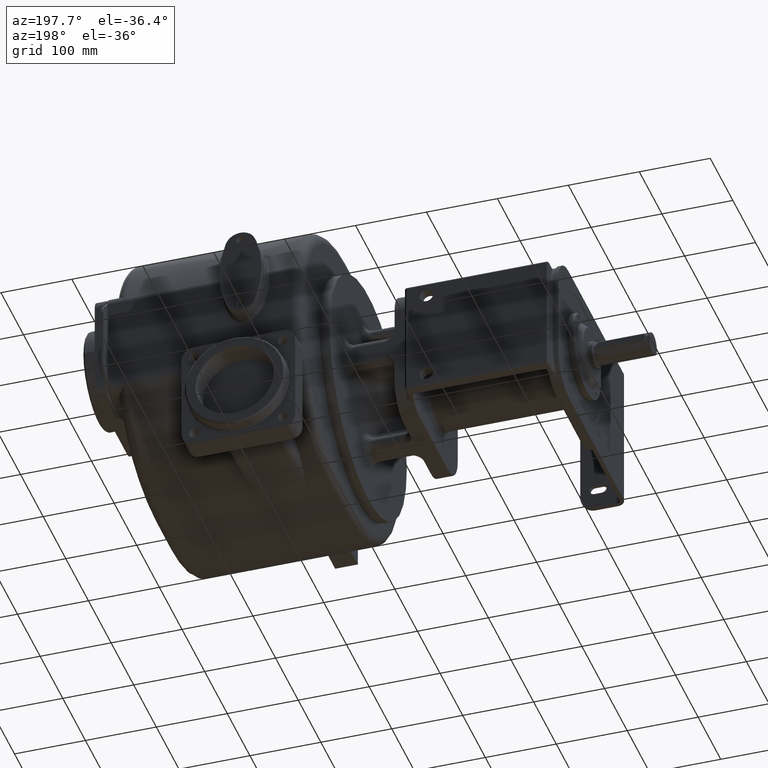
[diagram: clean part render]
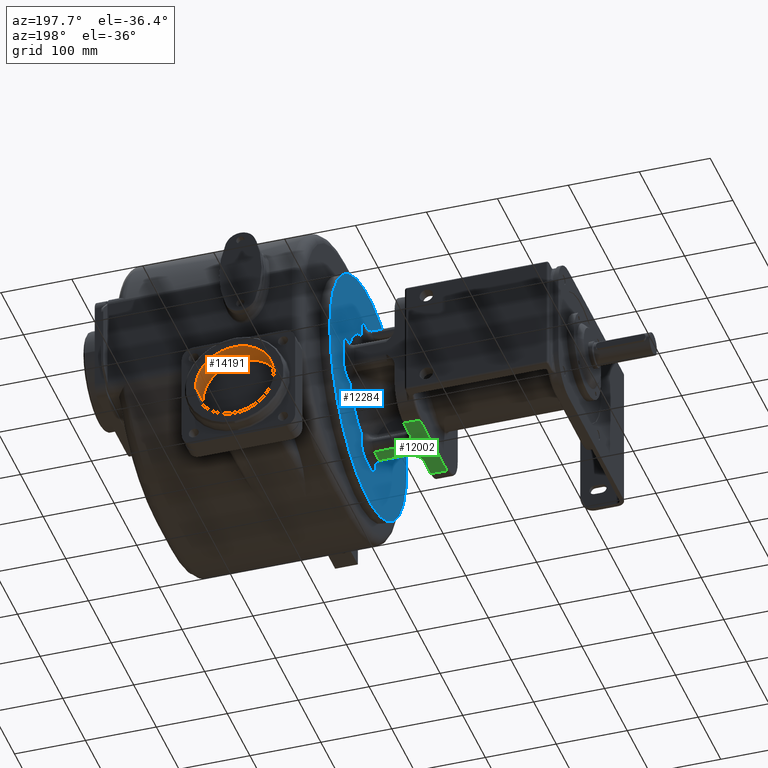
[diagram: same view with three faces highlighted in distinct colors, each labeled with its STEP entity id]
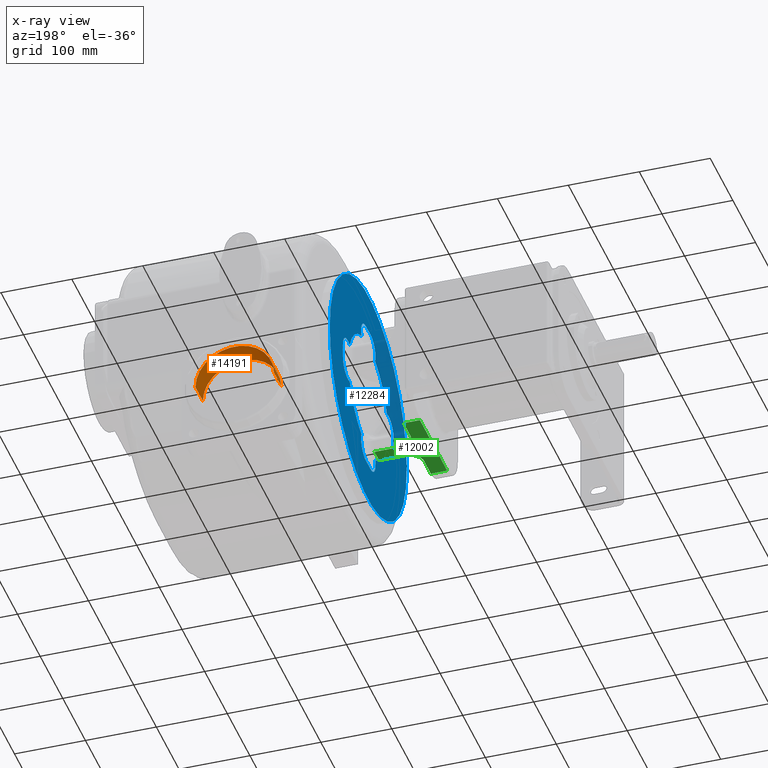
[diagram: x-ray of the same camera — body ghosted, the three highlighted faces saturated]
A machine part, auxiliary view with three faces highlighted in distinct colors.
The next image is the same camera in x-ray (body ghosted, the three faces saturated) — at least one of them is partly hidden behind the body in this view.
Their STEP definitions:

[orange] entity #14191 — the highlighted cylindrical surface (partial cylindrical patch) has radius 55.25 mm, axis along (0, 1, 0).
#2685=CARTESIAN_POINT('',(0.E0,4.945E2,-1.555E2));
#2686=DIRECTION('',(0.E0,1.E0,0.E0));
#2687=DIRECTION('',(-1.E0,0.E0,0.E0));
#2688=AXIS2_PLACEMENT_3D('',#2685,#2686,#2687);
#2707=DIRECTION('',(0.E0,1.E0,0.E0));
#2708=VECTOR('',#2707,3.3E1);
#2709=CARTESIAN_POINT('',(-5.525E1,4.615E2,-1.555E2));
#2710=LINE('',#2709,#2708);
#2711=DIRECTION('',(0.E0,1.E0,0.E0));
#2712=VECTOR('',#2711,3.3E1);
#2713=CARTESIAN_POINT('',(5.525E1,4.615E2,-1.555E2));
#2714=LINE('',#2713,#2712);
#2720=CARTESIAN_POINT('',(0.E0,4.615E2,-1.555E2));
#2721=DIRECTION('',(0.E0,1.E0,0.E0));
#2722=DIRECTION('',(-1.E0,0.E0,0.E0));
#2723=AXIS2_PLACEMENT_3D('',#2720,#2721,#2722);
#10107=CARTESIAN_POINT('',(5.525E1,4.945E2,-1.555E2));
#10108=CARTESIAN_POINT('',(-5.525E1,4.945E2,-1.555E2));
#10109=VERTEX_POINT('',#10107);
#10110=VERTEX_POINT('',#10108);
#10111=CARTESIAN_POINT('',(5.525E1,4.615E2,-1.555E2));
#10112=CARTESIAN_POINT('',(-5.525E1,4.615E2,-1.555E2));
#10113=VERTEX_POINT('',#10111);
#10114=VERTEX_POINT('',#10112);
#14179=CARTESIAN_POINT('',(0.E0,4.56385E2,-1.555E2));
#14180=DIRECTION('',(0.E0,1.E0,0.E0));
#14181=DIRECTION('',(1.E0,0.E0,0.E0));
#14182=AXIS2_PLACEMENT_3D('',#14179,#14180,#14181);
#14183=CYLINDRICAL_SURFACE('',#14182,5.525E1);
#14184=ORIENTED_EDGE('',*,*,#14134,.F.);
#14185=ORIENTED_EDGE('',*,*,#14174,.F.);
#14187=ORIENTED_EDGE('',*,*,#14186,.T.);
#14188=ORIENTED_EDGE('',*,*,#14170,.T.);
#14189=EDGE_LOOP('',(#14184,#14185,#14187,#14188));
#14190=FACE_OUTER_BOUND('',#14189,.F.);
#14191=ADVANCED_FACE('',(#14190),#14183,.F.);
#2689=CIRCLE('',#2688,5.525E1);
#2724=CIRCLE('',#2723,5.525E1);
#14134=EDGE_CURVE('',#10110,#10109,#2689,.T.);
#14170=EDGE_CURVE('',#10113,#10109,#2714,.T.);
#14174=EDGE_CURVE('',#10114,#10110,#2710,.T.);
#14186=EDGE_CURVE('',#10114,#10113,#2724,.T.);

[blue] entity #12284 — the highlighted planar face has unit normal (-1, 0, 0).
#604=DIRECTION('',(0.E0,0.E0,1.E0));
#605=VECTOR('',#604,2.E1);
#606=CARTESIAN_POINT('',(-9.45E1,8.8E1,-1.E1));
#607=LINE('',#606,#605);
#608=CARTESIAN_POINT('',(-9.45E1,1.1E2,1.E1));
#609=DIRECTION('',(-1.E0,0.E0,0.E0));
#610=DIRECTION('',(0.E0,-1.E0,0.E0));
#611=AXIS2_PLACEMENT_3D('',#608,#609,#610);
#613=CARTESIAN_POINT('',(-9.45E1,2.E2,0.E0));
#614=DIRECTION('',(-1.E0,0.E0,0.E0));
#615=DIRECTION('',(0.E0,-9.372872032920E-1,3.485580275149E-1));
#616=AXIS2_PLACEMENT_3D('',#613,#614,#615);
#618=CARTESIAN_POINT('',(-9.45E1,1.9E2,9.E1));
#619=DIRECTION('',(-1.E0,0.E0,0.E0));
#620=DIRECTION('',(0.E0,-9.317648821629E-1,-3.630622596305E-1));
#621=AXIS2_PLACEMENT_3D('',#618,#619,#620);
#623=DIRECTION('',(0.E0,1.E0,0.E0));
#624=VECTOR('',#623,2.E1);
#625=CARTESIAN_POINT('',(-9.45E1,1.9E2,1.12E2));
#626=LINE('',#625,#624);
#627=CARTESIAN_POINT('',(-9.45E1,2.1E2,9.E1));
#628=DIRECTION('',(-1.E0,0.E0,0.E0));
#629=DIRECTION('',(0.E0,0.E0,1.E0));
#630=AXIS2_PLACEMENT_3D('',#627,#628,#629);
#632=CARTESIAN_POINT('',(-9.45E1,2.E2,0.E0));
#633=DIRECTION('',(-1.E0,0.E0,0.E0));
#634=DIRECTION('',(0.E0,3.485580275149E-1,9.372872032920E-1));
#635=AXIS2_PLACEMENT_3D('',#632,#633,#634);
#637=CARTESIAN_POINT('',(-9.45E1,2.9E2,1.E1));
#638=DIRECTION('',(-1.E0,0.E0,0.E0));
#639=DIRECTION('',(0.E0,-3.630622596304E-1,9.317648821629E-1));
#640=AXIS2_PLACEMENT_3D('',#637,#638,#639);
#642=DIRECTION('',(0.E0,0.E0,-1.E0));
#643=VECTOR('',#642,2.E1);
#644=CARTESIAN_POINT('',(-9.45E1,3.12E2,1.E1));
#645=LINE('',#644,#643);
#646=CARTESIAN_POINT('',(-9.45E1,2.9E2,-1.E1));
#647=DIRECTION('',(-1.E0,0.E0,0.E0));
#648=DIRECTION('',(0.E0,1.E0,0.E0));
#649=AXIS2_PLACEMENT_3D('',#646,#647,#648);
#651=CARTESIAN_POINT('',(-9.45E1,2.E2,0.E0));
#652=DIRECTION('',(1.E0,0.E0,0.E0));
#653=DIRECTION('',(0.E0,3.485580275149E-1,-9.372872032920E-1));
#654=AXIS2_PLACEMENT_3D('',#651,#652,#653);
#656=CARTESIAN_POINT('',(-9.45E1,2.1E2,-9.E1));
#657=DIRECTION('',(-1.E0,0.E0,0.E0));
#658=DIRECTION('',(0.E0,9.317648821629E-1,3.630622596305E-1));
#659=AXIS2_PLACEMENT_3D('',#656,#657,#658);
#661=DIRECTION('',(0.E0,-1.E0,0.E0));
#662=VECTOR('',#661,2.E1);
#663=CARTESIAN_POINT('',(-9.45E1,2.1E2,-1.12E2));
#664=LINE('',#663,#662);
#665=CARTESIAN_POINT('',(-9.45E1,1.9E2,-9.E1));
#666=DIRECTION('',(-1.E0,0.E0,0.E0));
#667=DIRECTION('',(0.E0,0.E0,-1.E0));
#668=AXIS2_PLACEMENT_3D('',#665,#666,#667);
#670=CARTESIAN_POINT('',(-9.45E1,2.E2,0.E0));
#671=DIRECTION('',(1.E0,0.E0,0.E0));
#672=DIRECTION('',(0.E0,-9.372872032920E-1,-3.485580275149E-1));
#673=AXIS2_PLACEMENT_3D('',#670,#671,#672);
#675=CARTESIAN_POINT('',(-9.45E1,1.1E2,-1.E1));
#676=DIRECTION('',(-1.E0,0.E0,0.E0));
#677=DIRECTION('',(0.E0,3.630622596305E-1,-9.317648821629E-1));
#678=AXIS2_PLACEMENT_3D('',#675,#676,#677);
#684=CARTESIAN_POINT('',(-9.45E1,2.E2,0.E0));
#685=DIRECTION('',(1.E0,0.E0,0.E0));
#686=DIRECTION('',(0.E0,-1.E0,0.E0));
#687=AXIS2_PLACEMENT_3D('',#684,#685,#686);
#5107=CARTESIAN_POINT('',(-9.45E1,2.E2,0.E0));
#5108=DIRECTION('',(-1.E0,0.E0,0.E0));
#5109=DIRECTION('',(0.E0,-1.E0,0.E0));
#5110=AXIS2_PLACEMENT_3D('',#5107,#5108,#5109);
#10656=CARTESIAN_POINT('',(-9.45E1,3.E1,0.E0));
#10657=CARTESIAN_POINT('',(-9.45E1,3.7E2,2.081901558551E-14));
#10658=VERTEX_POINT('',#10656);
#10659=VERTEX_POINT('',#10657);
#10676=CARTESIAN_POINT('',(-9.45E1,8.8E1,-1.E1));
#10677=CARTESIAN_POINT('',(-9.45E1,8.8E1,1.E1));
#10678=VERTEX_POINT('',#10676);
#10679=VERTEX_POINT('',#10677);
#10684=CARTESIAN_POINT('',(-9.45E1,3.12E2,1.E1));
#10685=CARTESIAN_POINT('',(-9.45E1,3.12E2,-1.E1));
#10686=VERTEX_POINT('',#10684);
#10687=VERTEX_POINT('',#10685);
#10692=CARTESIAN_POINT('',(-9.45E1,2.1E2,-1.12E2));
#10693=CARTESIAN_POINT('',(-9.45E1,1.9E2,-1.12E2));
#10694=VERTEX_POINT('',#10692);
#10695=VERTEX_POINT('',#10693);
#10700=CARTESIAN_POINT('',(-9.45E1,1.9E2,1.12E2));
#10701=CARTESIAN_POINT('',(-9.45E1,2.1E2,1.12E2));
#10702=VERTEX_POINT('',#10700);
#10703=VERTEX_POINT('',#10701);
#10748=CARTESIAN_POINT('',(-9.45E1,2.820126302881E2,-3.049882740758E1));
#10749=VERTEX_POINT('',#10748);
#10752=CARTESIAN_POINT('',(-9.45E1,2.820126302881E2,3.049882740758E1));
#10753=VERTEX_POINT('',#10752);
#10756=CARTESIAN_POINT('',(-9.45E1,1.695011725924E2,-8.201263028813E1));
#10757=VERTEX_POINT('',#10756);
#10760=CARTESIAN_POINT('',(-9.45E1,2.304988274076E2,-8.201263028813E1));
#10761=VERTEX_POINT('',#10760);
#10764=CARTESIAN_POINT('',(-9.45E1,2.304988274076E2,8.201263028813E1));
#10765=VERTEX_POINT('',#10764);
#10768=CARTESIAN_POINT('',(-9.45E1,1.695011725924E2,8.201263028813E1));
#10769=VERTEX_POINT('',#10768);
#10772=CARTESIAN_POINT('',(-9.45E1,1.179873697119E2,3.049882740758E1));
#10773=VERTEX_POINT('',#10772);
#10776=CARTESIAN_POINT('',(-9.45E1,1.179873697119E2,-3.049882740758E1));
#10777=VERTEX_POINT('',#10776);
#12240=CARTESIAN_POINT('',(-9.45E1,2.E2,0.E0));
#12241=DIRECTION('',(-1.E0,0.E0,0.E0));
#12242=DIRECTION('',(0.E0,1.E0,0.E0));
#12243=AXIS2_PLACEMENT_3D('',#12240,#12241,#12242);
#12244=PLANE('',#12243);
#12246=ORIENTED_EDGE('',*,*,#12245,.T.);
#12248=ORIENTED_EDGE('',*,*,#12247,.F.);
#12249=EDGE_LOOP('',(#12246,#12248));
#12250=FACE_OUTER_BOUND('',#12249,.F.);
#12252=ORIENTED_EDGE('',*,*,#12251,.T.);
#12254=ORIENTED_EDGE('',*,*,#12253,.T.);
#12256=ORIENTED_EDGE('',*,*,#12255,.T.);
#12258=ORIENTED_EDGE('',*,*,#12257,.T.);
#12260=ORIENTED_EDGE('',*,*,#12259,.T.);
#12262=ORIENTED_EDGE('',*,*,#12261,.T.);
#12264=ORIENTED_EDGE('',*,*,#12263,.T.);
#12266=ORIENTED_EDGE('',*,*,#12265,.T.);
#12268=ORIENTED_EDGE('',*,*,#12267,.T.);
#12270=ORIENTED_EDGE('',*,*,#12269,.T.);
#12272=ORIENTED_EDGE('',*,*,#12271,.F.);
#12273=ORIENTED_EDGE('',*,*,#12230,.T.);
#12275=ORIENTED_EDGE('',*,*,#12274,.T.);
#12277=ORIENTED_EDGE('',*,*,#12276,.T.);
#12279=ORIENTED_EDGE('',*,*,#12278,.F.);
#12281=ORIENTED_EDGE('',*,*,#12280,.T.);
#12282=EDGE_LOOP('',(#12252,#12254,#12256,#12258,#12260,#12262,#12264,#12266,
#12268,#12270,#12272,#12273,#12275,#12277,#12279,#12281));
#12283=FACE_BOUND('',#12282,.F.);
#12284=ADVANCED_FACE('',(#12250,#12283),#12244,.T.);
#612=CIRCLE('',#611,2.2E1);
#617=CIRCLE('',#616,8.75E1);
#622=CIRCLE('',#621,2.2E1);
#631=CIRCLE('',#630,2.2E1);
#636=CIRCLE('',#635,8.75E1);
#641=CIRCLE('',#640,2.2E1);
#650=CIRCLE('',#649,2.2E1);
#655=CIRCLE('',#654,8.75E1);
#660=CIRCLE('',#659,2.2E1);
#669=CIRCLE('',#668,2.2E1);
#674=CIRCLE('',#673,8.75E1);
#679=CIRCLE('',#678,2.2E1);
#688=CIRCLE('',#687,1.7E2);
#5111=CIRCLE('',#5110,1.7E2);
#12230=EDGE_CURVE('',#10761,#10694,#660,.T.);
#12245=EDGE_CURVE('',#10658,#10659,#688,.T.);
#12247=EDGE_CURVE('',#10658,#10659,#5111,.T.);
#12251=EDGE_CURVE('',#10678,#10679,#607,.T.);
#12253=EDGE_CURVE('',#10679,#10773,#612,.T.);
#12255=EDGE_CURVE('',#10773,#10769,#617,.T.);
#12257=EDGE_CURVE('',#10769,#10702,#622,.T.);
#12259=EDGE_CURVE('',#10702,#10703,#626,.T.);
#12261=EDGE_CURVE('',#10703,#10765,#631,.T.);
#12263=EDGE_CURVE('',#10765,#10753,#636,.T.);
#12265=EDGE_CURVE('',#10753,#10686,#641,.T.);
#12267=EDGE_CURVE('',#10686,#10687,#645,.T.);
#12269=EDGE_CURVE('',#10687,#10749,#650,.T.);
#12271=EDGE_CURVE('',#10761,#10749,#655,.T.);
#12274=EDGE_CURVE('',#10694,#10695,#664,.T.);
#12276=EDGE_CURVE('',#10695,#10757,#669,.T.);
#12278=EDGE_CURVE('',#10777,#10757,#674,.T.);
#12280=EDGE_CURVE('',#10777,#10678,#679,.T.);

[green] entity #12002 — the highlighted planar face has unit normal (0, 0, -1).
#307=DIRECTION('',(0.E0,-1.E0,0.E0));
#308=VECTOR('',#307,1.2E2);
#309=CARTESIAN_POINT('',(-1.865E2,2.6E2,-1.E2));
#310=LINE('',#309,#308);
#311=DIRECTION('',(1.E0,0.E0,0.E0));
#312=VECTOR('',#311,2.3E1);
#313=CARTESIAN_POINT('',(-1.865E2,1.4E2,-1.E2));
#314=LINE('',#313,#312);
#315=DIRECTION('',(0.E0,-1.E0,0.E0));
#316=VECTOR('',#315,2.E1);
#317=CARTESIAN_POINT('',(-1.065E2,2.1E2,-1.E2));
#318=LINE('',#317,#316);
#319=DIRECTION('',(1.E0,0.E0,0.E0));
#320=VECTOR('',#319,4.5E1);
#321=CARTESIAN_POINT('',(-1.515E2,2.1E2,-1.E2));
#322=LINE('',#321,#320);
#333=DIRECTION('',(1.E0,0.E0,0.E0));
#334=VECTOR('',#333,2.3E1);
#335=CARTESIAN_POINT('',(-1.865E2,2.6E2,-1.E2));
#336=LINE('',#335,#334);
#418=DIRECTION('',(0.E0,-1.E0,0.E0));
#419=VECTOR('',#418,3.040408205773E1);
#420=CARTESIAN_POINT('',(-1.635E2,2.6E2,-1.E2));
#421=LINE('',#420,#419);
#564=CARTESIAN_POINT('',(-1.635E2,2.295959179423E2,-1.E2));
#565=CARTESIAN_POINT('',(-1.635E2,2.294372498507E2,-1.E2));
#566=CARTESIAN_POINT('',(-1.634950078201E2,2.291181795852E2,-1.E2));
#567=CARTESIAN_POINT('',(-1.634722559378E2,2.286343089162E2,-1.E2));
#568=CARTESIAN_POINT('',(-1.634339402264E2,2.281453619298E2,-1.E2));
#569=CARTESIAN_POINT('',(-1.633797448528E2,2.276514405845E2,-1.E2));
#570=CARTESIAN_POINT('',(-1.633093344875E2,2.271526414492E2,-1.E2));
#571=CARTESIAN_POINT('',(-1.632223506587E2,2.266490327111E2,-1.E2));
#572=CARTESIAN_POINT('',(-1.631184067813E2,2.261406543805E2,-1.E2));
#573=CARTESIAN_POINT('',(-1.629970826223E2,2.256275130317E2,-1.E2));
#574=CARTESIAN_POINT('',(-1.628579175356E2,2.251095765603E2,-1.E2));
#575=CARTESIAN_POINT('',(-1.627004021732E2,2.245867671103E2,-1.E2));
#576=CARTESIAN_POINT('',(-1.625239689242E2,2.240589544033E2,-1.E2));
#577=CARTESIAN_POINT('',(-1.623279801152E2,2.235259463423E2,-1.E2));
#578=CARTESIAN_POINT('',(-1.621117106528E2,2.229874710208E2,-1.E2));
#579=CARTESIAN_POINT('',(-1.618743301156E2,2.224431654612E2,-1.E2));
#580=CARTESIAN_POINT('',(-1.616148774960E2,2.218925537047E2,-1.E2));
#581=CARTESIAN_POINT('',(-1.613322294542E2,2.213350211065E2,-1.E2));
#582=CARTESIAN_POINT('',(-1.610250574799E2,2.207697779057E2,-1.E2));
#583=CARTESIAN_POINT('',(-1.606917717483E2,2.201958135388E2,-1.E2));
#584=CARTESIAN_POINT('',(-1.603304434929E2,2.196118294382E2,-1.E2));
#585=CARTESIAN_POINT('',(-1.599386824266E2,2.190161325846E2,-1.E2));
#586=CARTESIAN_POINT('',(-1.595135416292E2,2.184065784940E2,-1.E2));
#587=CARTESIAN_POINT('',(-1.590510154650E2,2.177800341539E2,-1.E2));
#588=CARTESIAN_POINT('',(-1.585465448703E2,2.171331646268E2,-1.E2));
#589=CARTESIAN_POINT('',(-1.579918758347E2,2.164587391645E2,-1.E2));
#590=CARTESIAN_POINT('',(-1.573791474116E2,2.157512058189E2,-1.E2));
#591=CARTESIAN_POINT('',(-1.567025746167E2,2.150076203092E2,-1.E2));
#592=CARTESIAN_POINT('',(-1.559412834284E2,2.142090796846E2,-1.E2));
#593=CARTESIAN_POINT('',(-1.550571945266E2,2.133219645451E2,-1.E2));
#594=CARTESIAN_POINT('',(-1.540229694378E2,2.123257757452E2,-1.E2));
#595=CARTESIAN_POINT('',(-1.528362120265E2,2.112201453809E2,-1.E2));
#596=CARTESIAN_POINT('',(-1.519592904758E2,2.104192729234E2,-1.E2));
#597=CARTESIAN_POINT('',(-1.515E2,2.1E2,-1.E2));
#5336=CARTESIAN_POINT('',(-1.515E2,1.9E2,-1.E2));
#5337=CARTESIAN_POINT('',(-1.519597594334E2,1.895802989789E2,-1.E2));
#5338=CARTESIAN_POINT('',(-1.528376865200E2,1.887785046426E2,-1.E2));
#5339=CARTESIAN_POINT('',(-1.540255527122E2,1.876718028853E2,-1.E2));
#5340=CARTESIAN_POINT('',(-1.550621675734E2,1.866731894088E2,-1.E2));
#5341=CARTESIAN_POINT('',(-1.559479490770E2,1.857841122070E2,-1.E2));
#5342=CARTESIAN_POINT('',(-1.567092827526E2,1.849851672674E2,-1.E2));
#5343=CARTESIAN_POINT('',(-1.573837489976E2,1.842435822864E2,-1.E2));
#5344=CARTESIAN_POINT('',(-1.579952602838E2,1.835372403626E2,-1.E2));
#5345=CARTESIAN_POINT('',(-1.585493621357E2,1.828633164610E2,-1.E2));
#5346=CARTESIAN_POINT('',(-1.590536549661E2,1.822164853917E2,-1.E2));
#5347=CARTESIAN_POINT('',(-1.595157667529E2,1.815903157551E2,-1.E2));
#5348=CARTESIAN_POINT('',(-1.599406725062E2,1.809809270834E2,-1.E2));
#5349=CARTESIAN_POINT('',(-1.603321698072E2,1.803854607011E2,-1.E2));
#5350=CARTESIAN_POINT('',(-1.606932836655E2,1.798016614426E2,-1.E2));
#5351=CARTESIAN_POINT('',(-1.610263721530E2,1.792278788107E2,-1.E2));
#5352=CARTESIAN_POINT('',(-1.613333700492E2,1.786628031614E2,-1.E2));
#5353=CARTESIAN_POINT('',(-1.616158630094E2,1.781054272396E2,-1.E2));
#5354=CARTESIAN_POINT('',(-1.618751749140E2,1.775549681931E2,-1.E2));
#5355=CARTESIAN_POINT('',(-1.621124275950E2,1.770108130437E2,-1.E2));
#5356=CARTESIAN_POINT('',(-1.623285812417E2,1.764724863957E2,-1.E2));
#5357=CARTESIAN_POINT('',(-1.625244657865E2,1.759396251693E2,-1.E2));
#5358=CARTESIAN_POINT('',(-1.627008056828E2,1.754119580111E2,-1.E2));
#5359=CARTESIAN_POINT('',(-1.628582391252E2,1.748892896604E2,-1.E2));
#5360=CARTESIAN_POINT('',(-1.629973334664E2,1.743714881596E2,-1.E2));
#5361=CARTESIAN_POINT('',(-1.631185971924E2,1.738584756741E2,-1.E2));
#5362=CARTESIAN_POINT('',(-1.632224889596E2,1.733502267686E2,-1.E2));
#5363=CARTESIAN_POINT('',(-1.633094292302E2,1.728467464289E2,-1.E2));
#5364=CARTESIAN_POINT('',(-1.633798043858E2,1.723480744348E2,-1.E2));
#5365=CARTESIAN_POINT('',(-1.634339727469E2,1.718542786975E2,-1.E2));
#5366=CARTESIAN_POINT('',(-1.634722695113E2,1.713654545457E2,-1.E2));
#5367=CARTESIAN_POINT('',(-1.634950102165E2,1.708817046320E2,-1.E2));
#5368=CARTESIAN_POINT('',(-1.635E2,1.705627119559E2,-1.E2));
#5369=CARTESIAN_POINT('',(-1.635E2,1.704040820577E2,-1.E2));
#5381=DIRECTION('',(0.E0,-1.E0,0.E0));
#5382=VECTOR('',#5381,3.040408205773E1);
#5383=CARTESIAN_POINT('',(-1.635E2,1.704040820577E2,-1.E2));
#5384=LINE('',#5383,#5382);
#5721=DIRECTION('',(1.E0,0.E0,0.E0));
#5722=VECTOR('',#5721,4.5E1);
#5723=CARTESIAN_POINT('',(-1.515E2,1.9E2,-1.E2));
#5724=LINE('',#5723,#5722);
#10649=CARTESIAN_POINT('',(-1.635E2,2.6E2,-1.E2));
#10651=VERTEX_POINT('',#10649);
#10652=CARTESIAN_POINT('',(-1.635E2,1.4E2,-1.E2));
#10654=VERTEX_POINT('',#10652);
#10662=VERTEX_POINT('',#564);
#10663=VERTEX_POINT('',#597);
#10666=VERTEX_POINT('',#5336);
#10667=VERTEX_POINT('',#5369);
#10696=CARTESIAN_POINT('',(-1.065E2,2.1E2,-1.E2));
#10697=CARTESIAN_POINT('',(-1.065E2,1.9E2,-1.E2));
#10698=VERTEX_POINT('',#10696);
#10699=VERTEX_POINT('',#10697);
#10973=CARTESIAN_POINT('',(-1.865E2,2.6E2,-1.E2));
#10975=VERTEX_POINT('',#10973);
#10978=CARTESIAN_POINT('',(-1.865E2,1.4E2,-1.E2));
#10979=VERTEX_POINT('',#10978);
#11976=CARTESIAN_POINT('',(-1.635E2,2.6E2,-1.E2));
#11977=DIRECTION('',(0.E0,0.E0,-1.E0));
#11978=DIRECTION('',(0.E0,-1.E0,0.E0));
#11979=AXIS2_PLACEMENT_3D('',#11976,#11977,#11978);
#11980=PLANE('',#11979);
#11982=ORIENTED_EDGE('',*,*,#11981,.F.);
#11984=ORIENTED_EDGE('',*,*,#11983,.T.);
#11985=ORIENTED_EDGE('',*,*,#11966,.T.);
#11987=ORIENTED_EDGE('',*,*,#11986,.F.);
#11989=ORIENTED_EDGE('',*,*,#11988,.F.);
#11991=ORIENTED_EDGE('',*,*,#11990,.T.);
#11993=ORIENTED_EDGE('',*,*,#11992,.F.);
#11995=ORIENTED_EDGE('',*,*,#11994,.F.);
#11997=ORIENTED_EDGE('',*,*,#11996,.F.);
#11999=ORIENTED_EDGE('',*,*,#11998,.F.);
#12000=EDGE_LOOP('',(#11982,#11984,#11985,#11987,#11989,#11991,#11993,#11995,
#11997,#11999));
#12001=FACE_OUTER_BOUND('',#12000,.F.);
#12002=ADVANCED_FACE('',(#12001),#11980,.T.);
#598=B_SPLINE_CURVE_WITH_KNOTS('',3,(#564,#565,#566,#567,#568,#569,#570,#571,
#572,#573,#574,#575,#576,#577,#578,#579,#580,#581,#582,#583,#584,#585,#586,#587,
#588,#589,#590,#591,#592,#593,#594,#595,#596,#597),.UNSPECIFIED.,.F.,.F.,(4,1,1,
1,1,1,1,1,1,1,1,1,1,1,1,1,1,1,1,1,1,1,1,1,1,1,1,1,1,1,1,4),(0.E0,
3.225806451613E-2,6.451612903226E-2,9.677419354839E-2,1.290322580645E-1,
1.612903225806E-1,1.935483870968E-1,2.258064516129E-1,2.580645161290E-1,
2.903225806452E-1,3.225806451613E-1,3.548387096774E-1,3.870967741935E-1,
4.193548387097E-1,4.516129032258E-1,4.838709677419E-1,5.161290322581E-1,
5.483870967742E-1,5.806451612903E-1,6.129032258065E-1,6.451612903226E-1,
6.774193548387E-1,7.096774193548E-1,7.419354838710E-1,7.741935483871E-1,
8.064516129032E-1,8.387096774194E-1,8.709677419355E-1,9.032258064516E-1,
9.354838709677E-1,9.677419354839E-1,1.E0),.UNSPECIFIED.);
#5370=B_SPLINE_CURVE_WITH_KNOTS('',3,(#5336,#5337,#5338,#5339,#5340,#5341,#5342,
#5343,#5344,#5345,#5346,#5347,#5348,#5349,#5350,#5351,#5352,#5353,#5354,#5355,
#5356,#5357,#5358,#5359,#5360,#5361,#5362,#5363,#5364,#5365,#5366,#5367,#5368,
#5369),.UNSPECIFIED.,.F.,.F.,(4,1,1,1,1,1,1,1,1,1,1,1,1,1,1,1,1,1,1,1,1,1,1,1,1,
1,1,1,1,1,1,4),(0.E0,3.225806451613E-2,6.451612903226E-2,9.677419354839E-2,
1.290322580645E-1,1.612903225806E-1,1.935483870968E-1,2.258064516129E-1,
2.580645161290E-1,2.903225806452E-1,3.225806451613E-1,3.548387096774E-1,
3.870967741935E-1,4.193548387097E-1,4.516129032258E-1,4.838709677419E-1,
5.161290322581E-1,5.483870967742E-1,5.806451612903E-1,6.129032258065E-1,
6.451612903226E-1,6.774193548387E-1,7.096774193548E-1,7.419354838710E-1,
7.741935483871E-1,8.064516129032E-1,8.387096774194E-1,8.709677419355E-1,
9.032258064516E-1,9.354838709677E-1,9.677419354839E-1,1.E0),.UNSPECIFIED.);
#11966=EDGE_CURVE('',#10979,#10654,#314,.T.);
#11981=EDGE_CURVE('',#10975,#10651,#336,.T.);
#11983=EDGE_CURVE('',#10975,#10979,#310,.T.);
#11986=EDGE_CURVE('',#10667,#10654,#5384,.T.);
#11988=EDGE_CURVE('',#10666,#10667,#5370,.T.);
#11990=EDGE_CURVE('',#10666,#10699,#5724,.T.);
#11992=EDGE_CURVE('',#10698,#10699,#318,.T.);
#11994=EDGE_CURVE('',#10663,#10698,#322,.T.);
#11996=EDGE_CURVE('',#10662,#10663,#598,.T.);
#11998=EDGE_CURVE('',#10651,#10662,#421,.T.);